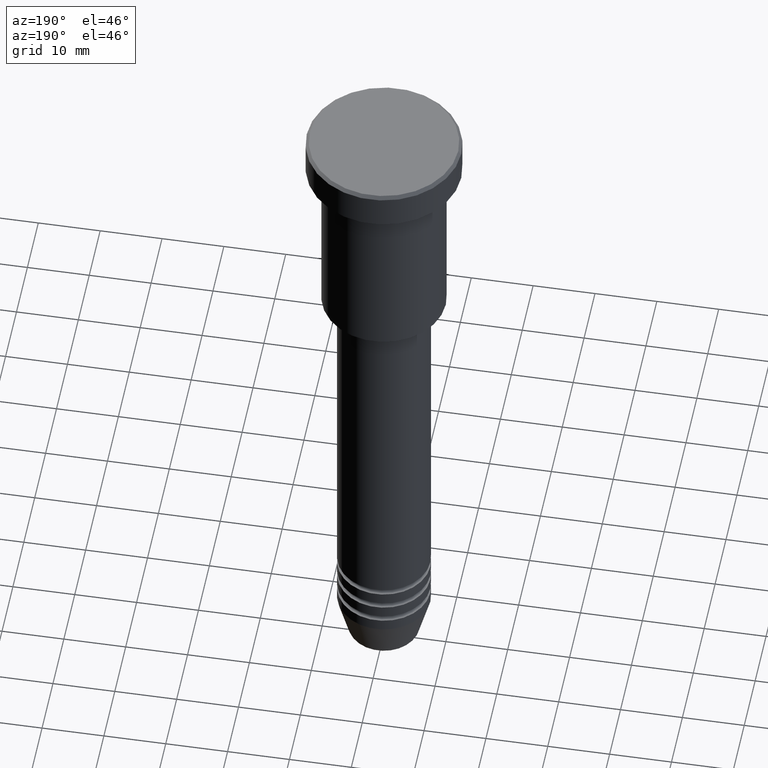
[diagram: clean part render]
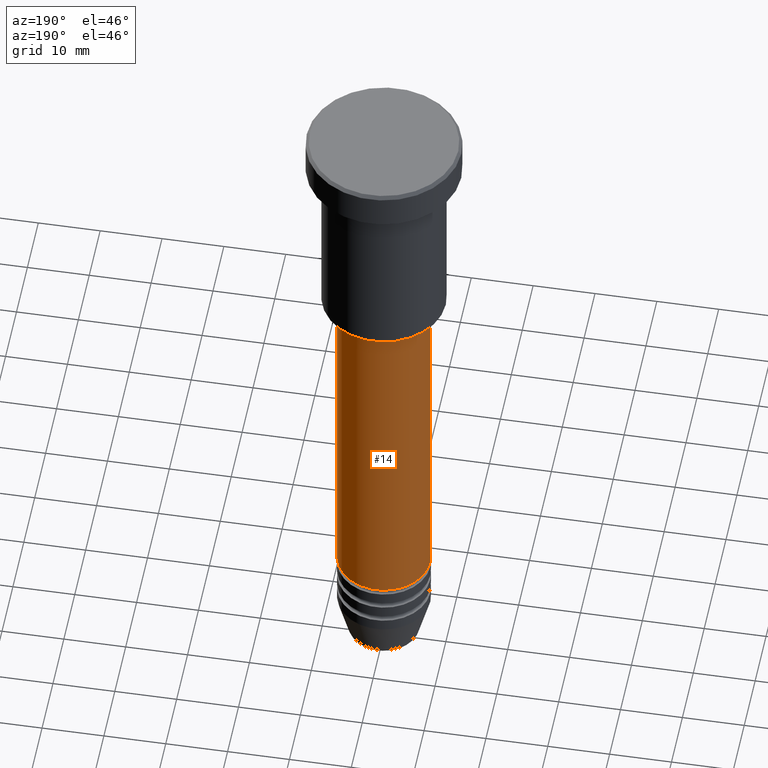
[diagram: same view with one face highlighted and labeled with its STEP entity id]
A machine part, auxiliary view. The second image highlights one B-rep face of the part: STEP entity #14.
In plain terms, the highlighted cylindrical surface (partial cylindrical patch) has radius 7.5 mm, axis along (-0, -0, 1).
Its self-contained STEP definition (entity closure, byte-faithful):
#13 = DIRECTION ( 'NONE',  ( 1.000000000000000000, 0.000000000000000000, 0.000000000000000000 ) ) ;
#14 = ADVANCED_FACE ( 'NONE', ( #783 ), #427, .T. ) ;
#16 = DIRECTION ( 'NONE',  ( -0.000000000000000000, -0.000000000000000000, 1.000000000000000000 ) ) ;
#37 = DIRECTION ( 'NONE',  ( -0.000000000000000000, -0.000000000000000000, 1.000000000000000000 ) ) ;
#50 = AXIS2_PLACEMENT_3D ( 'NONE', #963, #339, #779 ) ;
#142 = CARTESIAN_POINT ( 'NONE',  ( -7.500000000000000000, 9.184850993605147944E-16, 0.000000000000000000 ) ) ;
#146 = VERTEX_POINT ( 'NONE', #255 ) ;
#196 = CARTESIAN_POINT ( 'NONE',  ( 7.500000000000000000, 0.000000000000000000, 0.000000000000000000 ) ) ;
#241 = ORIENTED_EDGE ( 'NONE', *, *, #705, .T. ) ;
#255 = CARTESIAN_POINT ( 'NONE',  ( 7.500000000000000000, 0.000000000000000000, -37.00000000000001421 ) ) ;
#270 = VECTOR ( 'NONE', #37, 1000.000000000000000 ) ;
#333 = CARTESIAN_POINT ( 'NONE',  ( 0.000000000000000000, 0.000000000000000000, 0.000000000000000000 ) ) ;
#339 = DIRECTION ( 'NONE',  ( -0.000000000000000000, -0.000000000000000000, 1.000000000000000000 ) ) ;
#348 = CIRCLE ( 'NONE', #825, 7.500000000000000000 ) ;
#365 = VECTOR ( 'NONE', #1104, 1000.000000000000000 ) ;
#371 = EDGE_CURVE ( 'NONE', #862, #758, #348, .T. ) ;
#417 = EDGE_CURVE ( 'NONE', #862, #146, #468, .T. ) ;
#427 = CYLINDRICAL_SURFACE ( 'NONE', #1031, 7.500000000000000000 ) ;
#468 = LINE ( 'NONE', #196, #365 ) ;
#493 = EDGE_LOOP ( 'NONE', ( #565, #241, #661, #675 ) ) ;
#565 = ORIENTED_EDGE ( 'NONE', *, *, #371, .T. ) ;
#661 = ORIENTED_EDGE ( 'NONE', *, *, #881, .F. ) ;
#666 = CARTESIAN_POINT ( 'NONE',  ( -7.500000000000000000, 9.184850993605147944E-16, -94.99999999999997158 ) ) ;
#675 = ORIENTED_EDGE ( 'NONE', *, *, #417, .F. ) ;
#699 = DIRECTION ( 'NONE',  ( -0.000000000000000000, -0.000000000000000000, 1.000000000000000000 ) ) ;
#705 = EDGE_CURVE ( 'NONE', #758, #849, #1150, .T. ) ;
#758 = VERTEX_POINT ( 'NONE', #666 ) ;
#779 = DIRECTION ( 'NONE',  ( 1.000000000000000000, 0.000000000000000000, 0.000000000000000000 ) ) ;
#783 = FACE_OUTER_BOUND ( 'NONE', #493, .T. ) ;
#825 = AXIS2_PLACEMENT_3D ( 'NONE', #923, #16, #13 ) ;
#849 = VERTEX_POINT ( 'NONE', #876 ) ;
#862 = VERTEX_POINT ( 'NONE', #980 ) ;
#876 = CARTESIAN_POINT ( 'NONE',  ( -7.500000000000000000, 9.184850993605147944E-16, -37.00000000000001421 ) ) ;
#881 = EDGE_CURVE ( 'NONE', #146, #849, #943, .T. ) ;
#923 = CARTESIAN_POINT ( 'NONE',  ( 0.000000000000000000, 0.000000000000000000, -94.99999999999997158 ) ) ;
#943 = CIRCLE ( 'NONE', #50, 7.500000000000000000 ) ;
#963 = CARTESIAN_POINT ( 'NONE',  ( 0.000000000000000000, 0.000000000000000000, -37.00000000000001421 ) ) ;
#973 = DIRECTION ( 'NONE',  ( 1.000000000000000000, 0.000000000000000000, 0.000000000000000000 ) ) ;
#980 = CARTESIAN_POINT ( 'NONE',  ( 7.500000000000000000, 0.000000000000000000, -94.99999999999997158 ) ) ;
#1031 = AXIS2_PLACEMENT_3D ( 'NONE', #333, #699, #973 ) ;
#1104 = DIRECTION ( 'NONE',  ( -0.000000000000000000, -0.000000000000000000, 1.000000000000000000 ) ) ;
#1150 = LINE ( 'NONE', #142, #270 ) ;